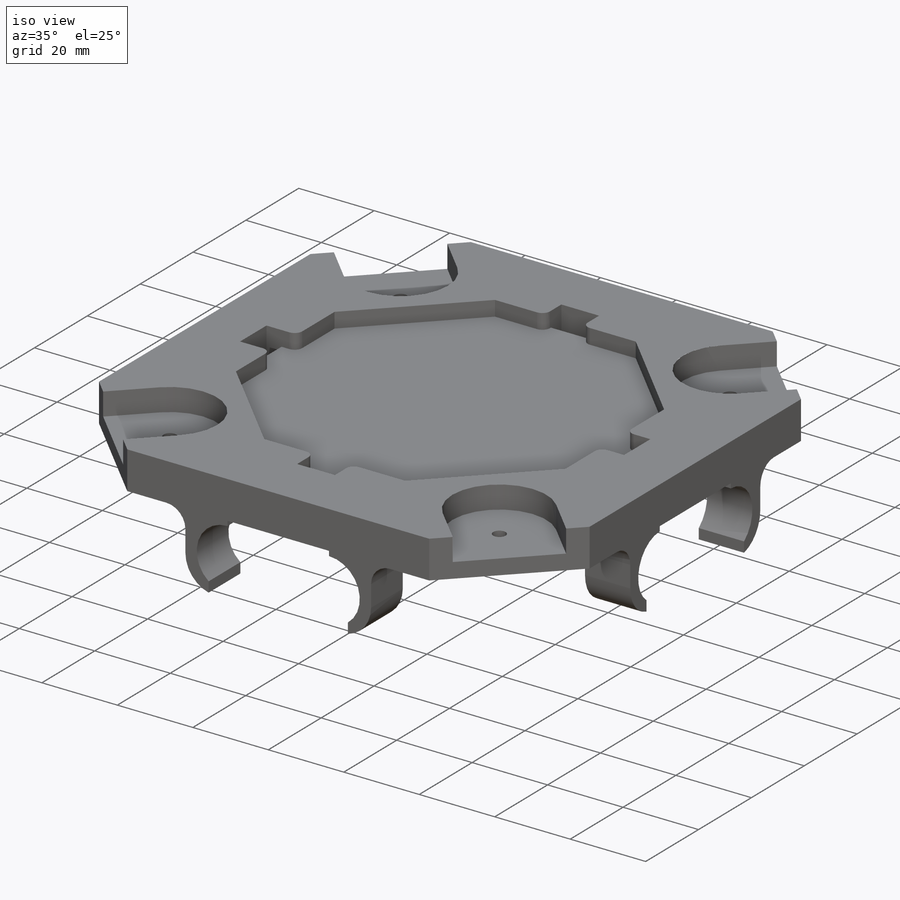
[diagram: iso view]
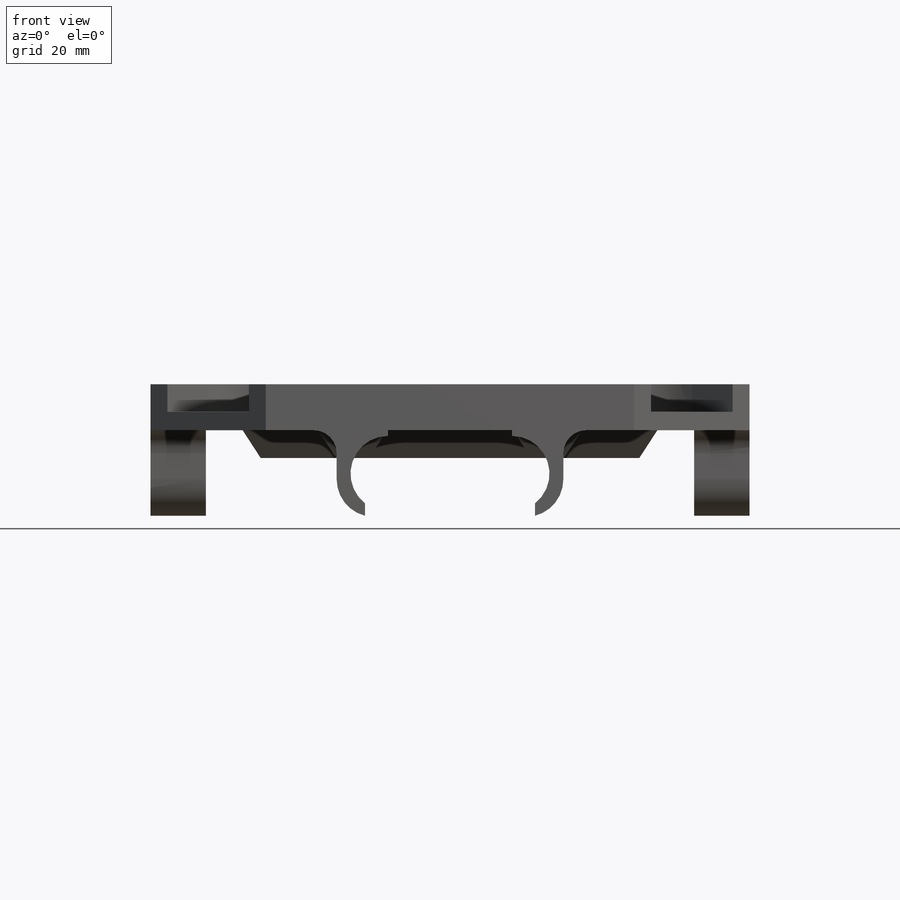
[diagram: front view]
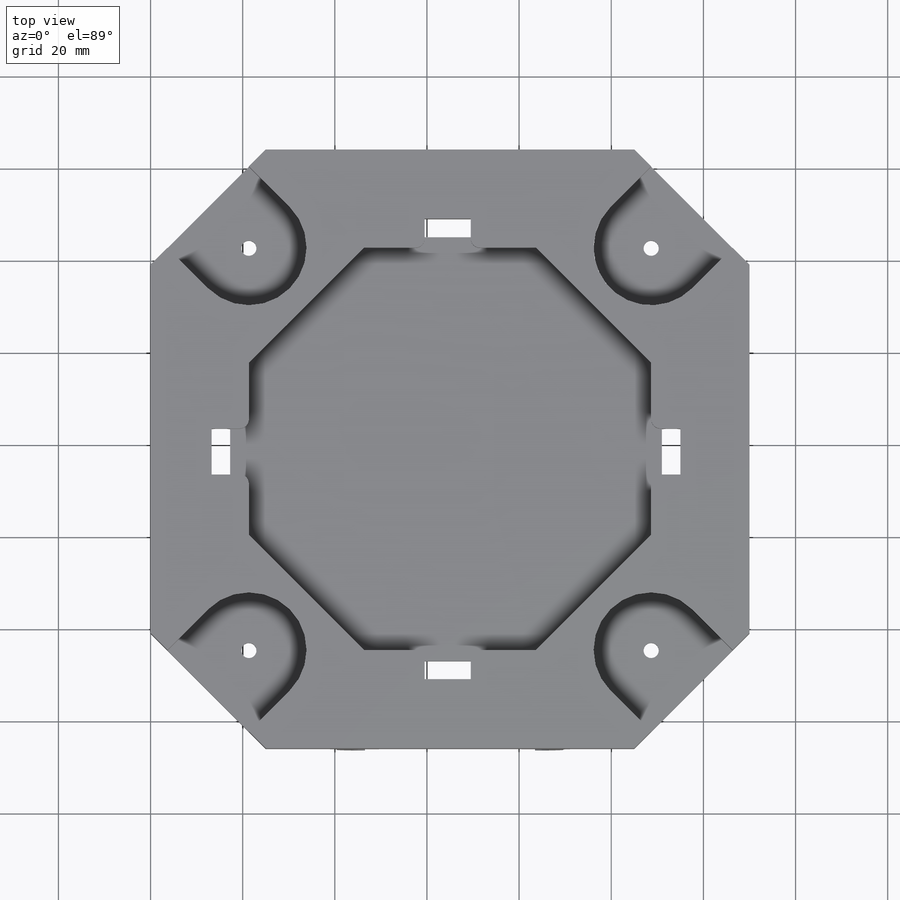
[diagram: top view]
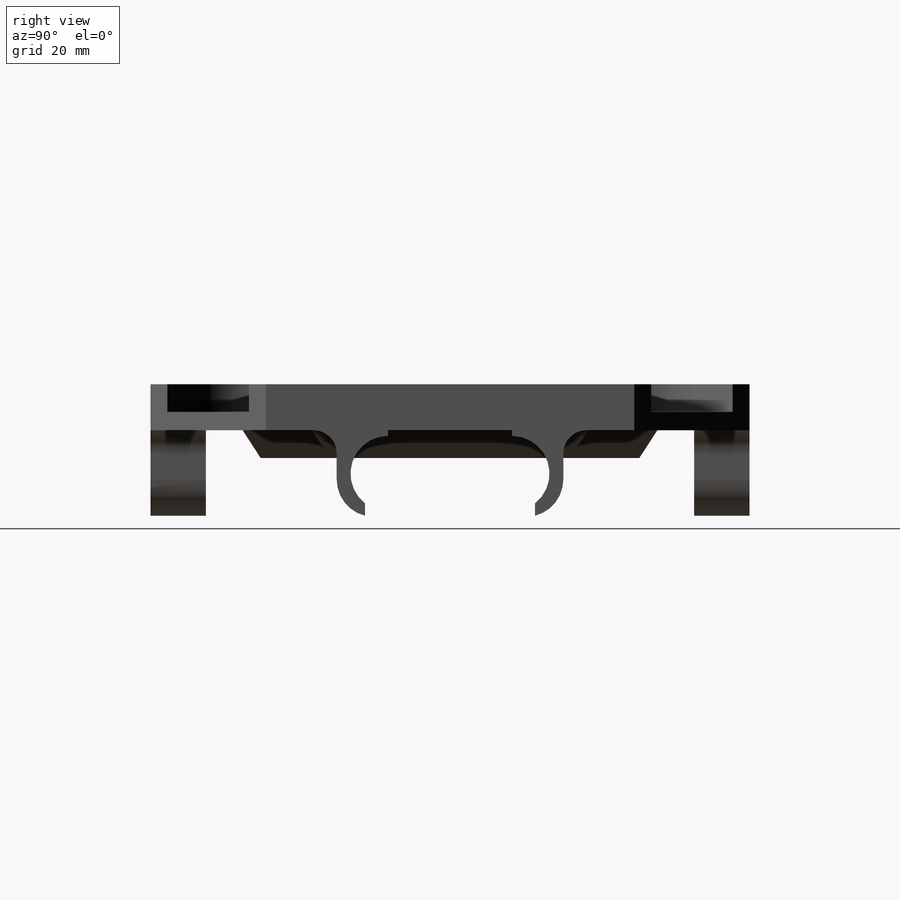
[diagram: right view]
SOLIDWORKS PART (.sldprt)
format: sldprt  version: not decoded by parser v0  size: 851,968 bytes
history: native  units: mm
features: sketch x17, cut_extrude x10, extrude x7, fillet x4, material x1, chamfer x1 (+13 scaffold rows collapsed)
feature tree (53):
  scaffold x13  (default folders/planes/origin — collapsed)
  material  "Material <not specified>"
  sketch  "Sketch2"  dims[D1=130.0mm D2=130.0mm D3=25.0mm D4=25.0mm D5=25.0mm D6=25.0mm D7=25.0mm D8=25.0mm D9=25.0mm D10=25.0mm]
  extrude  "Boss-Extrude2"  Depth=10mm
  sketch  "Sketch3"  dims[D1=25.0mm D2=25.0mm D3=25.0mm D4=25.0mm D5=5.18mm D6=~5.175339mm D7=5.18mm D8=5.18mm D9=5.18mm D10=25.0mm D11=25.0mm D12=25.0mm D13=25.0mm]
  cut_extrude  "Cut-Extrude1"  Depth=6mm
  sketch  "Sketch4"  dims[D1=3.3mm D2=3.3mm D3=3.3mm D4=3.3mm]
  cut_extrude  "Cut-Extrude2"  Depth=6mm
  sketch  "Sketch5"  dims[D1=52.0mm D2=14.0mm D3=14.0mm]
  cut_extrude  "Cut-Extrude3"  Depth=4mm
  sketch  "Sketch6"  dims[D1=90.0mm D2=20.0mm D3=20.0mm D4=15.0mm D5=15.0mm D6=15.0mm D7=15.0mm D8=90.0mm D9=20.0mm D10=12.5mm D11=35.0mm D12=12.5mm D13=35.0mm]
  extrude  "Boss-Extrude3"  Depth=6mm
  sketch  "Sketch7"  dims[D1=40.0mm D2=20.0mm D3=20.0mm D4=40.0mm D5=20.0mm]
  extrude  "Boss-Extrude4"  [1 undecoded]
  sketch  "Sketch12"  dims[D8=16.3mm D9=16.3mm D1=18.8mm D2=18.8mm D3=3.0mm D4=3.0mm D5=43.2mm D6=15.4mm D7=15.4mm D10=4.0mm D11=4.0mm]
  extrude  "Boss-Extrude5"  Depth=12mm
  sketch  "Sketch13"  dims[D1=3.0mm D2=3.0mm]
  extrude  "Boss-Extrude6"  Depth=12mm
  sketch  "Sketch14"  dims[c1.D8=16.3mm c1.D9=16.3mm c1.D1=3.0mm c1.D2=3.0mm c1.D3=43.2mm c1.D4=15.4mm c1.D5=15.4mm c1.D6=18.8mm c1.D7=18.8mm c2.D8=28.4mm c2.D10=3.0mm c2.D11=3.0mm c2.D12=3.0mm c2.D13=11.15mm]
  extrude  "Boss-Extrude7"  Depth=12mm
  sketch  "Sketch15"
  extrude  "Boss-Extrude8"  Depth=12mm
  fillet  "Fillet2"  Radius=8.15mm
  fillet  "Fillet3"  Radius=5mm
  sketch  "Sketch16"  dims[c1.D1=15.0mm c1.D2=4.0mm c1.D3=7.0mm c2.D1=1.0mm c3.D1=7.0mm c3.D4=7.0mm c3.D5=7.0mm c3.D6=4.0mm c3.D7=15.0mm c3.D8=7.0mm c3.D9=7.0mm c3.D10=15.0mm c3.D11=4.0mm c3.D12=4.0mm c3.D13=7.0mm c3.D14=7.0mm c3.D15=19.0mm]
  cut_extrude  "Cut-Extrude7"  Depth=5mm
  sketch  "Sketch17"  dims[D1=0.0mm]
  cut_extrude  "Cut-Extrude8"  Depth=200mm
  chamfer  "Chamfer1"  Distance=1.5mm Angle=39deg
  fillet  "Fillet4"  Radius=2mm
  sketch  "Sketch18"  dims[D1=5.0mm D2=5.0mm]
  cut_extrude  "Cut-Extrude9"  Depth=200mm
  sketch  "Sketch19"  dims[D1=5.0mm D2=5.0mm]
  cut_extrude  "Cut-Extrude10"  Depth=200mm
  sketch  "Sketch21"  dims[D1=10.0mm D2=23.025mm D3=23.025mm D4=23.025mm D5=10.0mm D6=10.0mm D7=23.025mm D8=10.0mm D9=23.025mm]
  cut_extrude  "Cut-Extrude11"  Depth=200mm
  sketch  "Sketch22"  dims[D1=25.0mm D2=25.0mm D3=25.0mm D4=25.0mm D5=25.0mm D6=25.0mm D7=25.0mm D8=25.0mm]
  cut_extrude  "Cut-Extrude12"  Depth=4mm
  sketch  "Sketch23"
  cut_extrude  "Cut-Extrude13"  [1 undecoded]
  fillet  "Fillet5"  Radius=2mm
decode coverage: 35 of 39 modeling features carry decoded parameters
note: ~ marks probable driven/reference dimensions
note: 2 parameter values undecoded
note: suppression state not decoded; provenance and decode notes live in map.json
